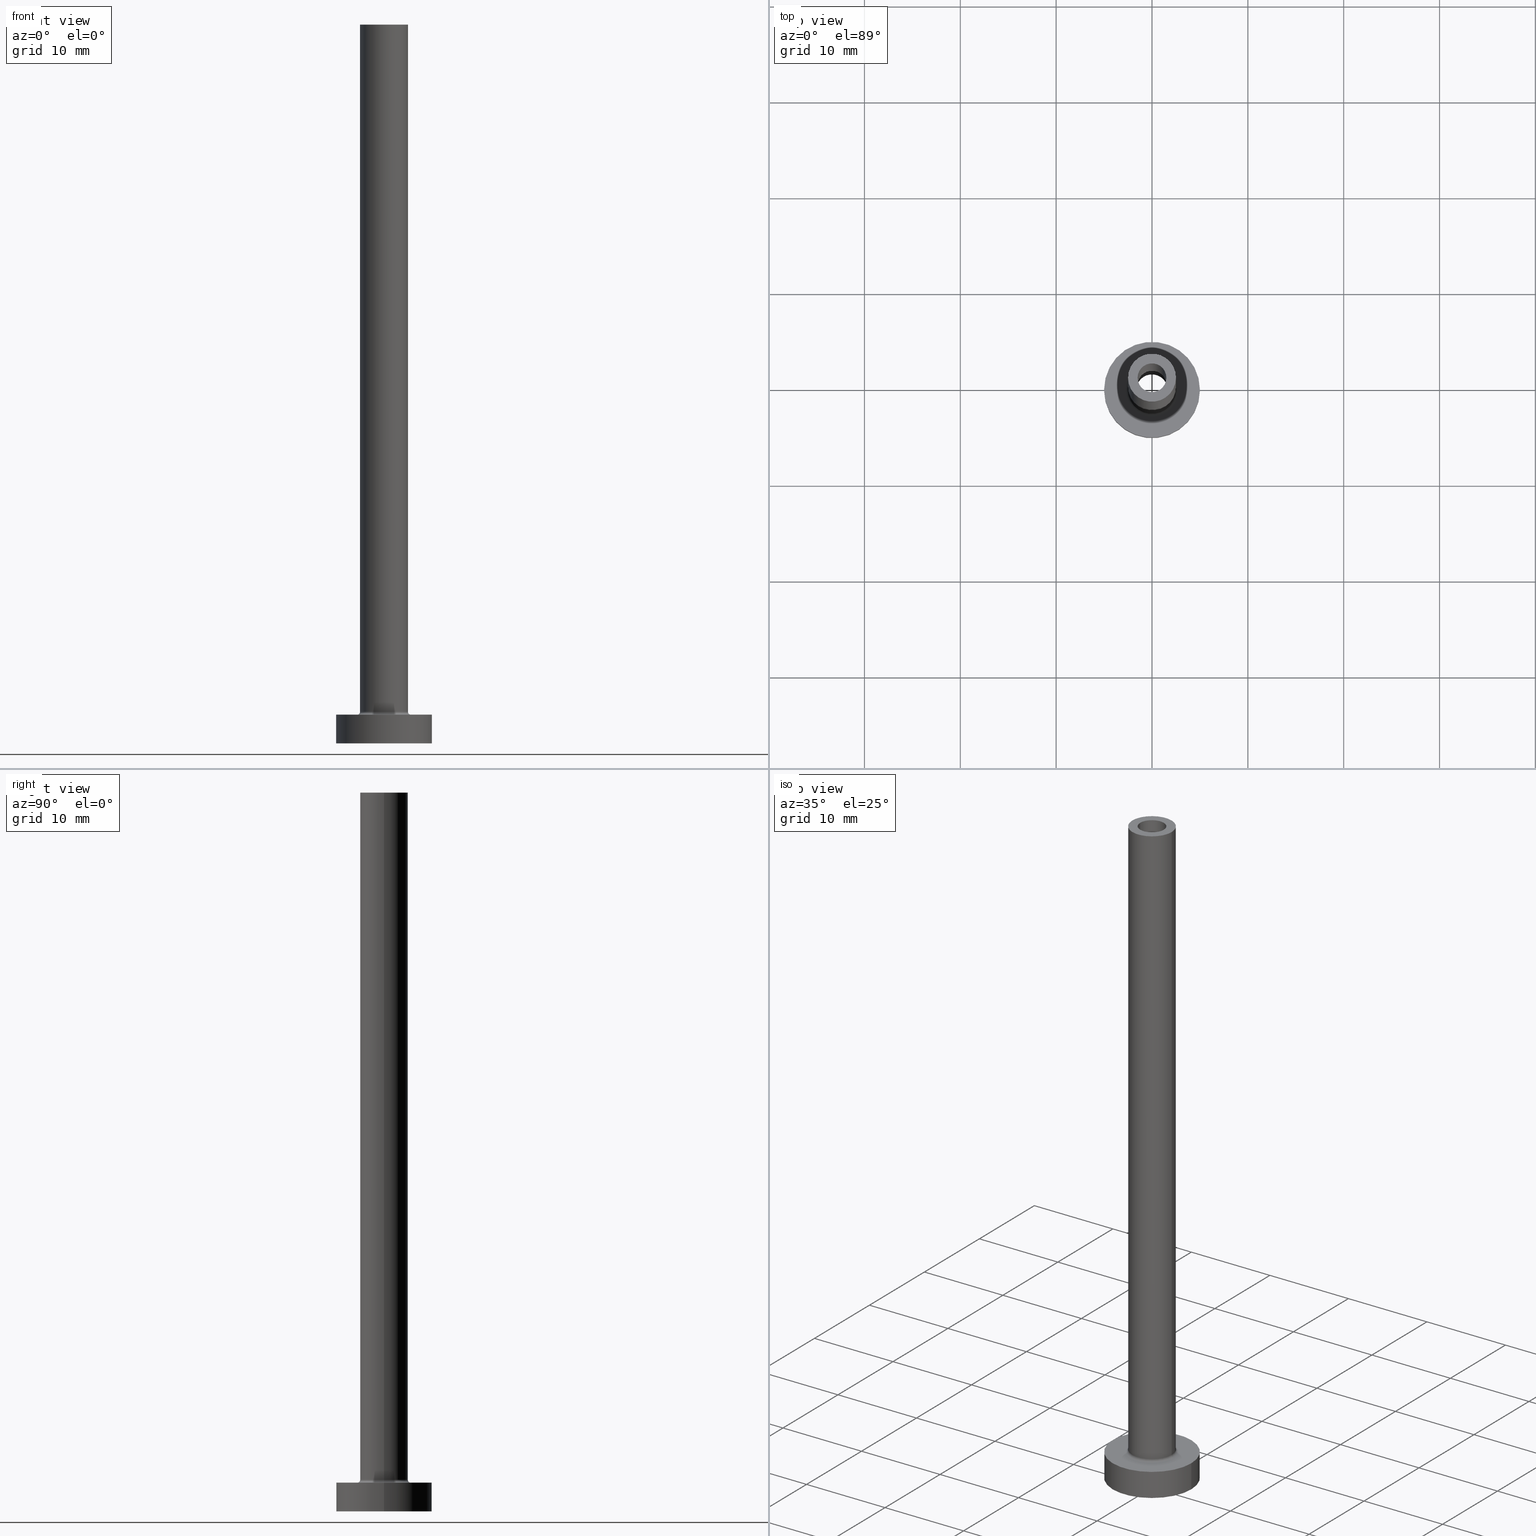
[diagram: canonical four-view strip — front | top / right | iso, engineering-drawing reading convention]
A machine part, canonical four-view strip (front | top / right | iso — engineering-drawing reading convention). The complete STEP part file that produces these views, byte-faithful:
ISO-10303-21;
HEADER;
FILE_DESCRIPTION (( 'STEP AP203' ),
    '1' );
FILE_NAME ('d244.STEP',
    '2023-02-13T12:48:20',
    ( '' ),
    ( '' ),
    'SwSTEP 2.0',
    'SolidWorks 2019',
    '' );
FILE_SCHEMA (( 'CONFIG_CONTROL_DESIGN' ));
ENDSEC;

DATA;
#1 = AXIS2_PLACEMENT_3D ( 'NONE', #138, #398, #359 ) ;
#2 = ORGANIZATION ( 'NEUR�EN�', 'NEUR�EN�', '' ) ;
#3 = DIRECTION ( 'NONE',  ( 1.000000000000000000, 0.000000000000000000, 0.000000000000000000 ) ) ;
#4 = CARTESIAN_POINT ( 'NONE',  ( 0.000000000000000000, 0.000000000000000000, 30.00000000000001421 ) ) ;
#5 = APPROVAL ( #351, 'NEUR�EN�' ) ;
#6 = ORIENTED_EDGE ( 'NONE', *, *, #372, .F. ) ;
#7 = DIRECTION ( 'NONE',  ( 0.000000000000000000, 0.000000000000000000, -1.000000000000000000 ) ) ;
#8 = ORIENTED_EDGE ( 'NONE', *, *, #247, .T. ) ;
#9 = ORIENTED_EDGE ( 'NONE', *, *, #108, .F. ) ;
#10 = CYLINDRICAL_SURFACE ( 'NONE', #397, 2.500000000000000000 ) ;
#11 = ORIENTED_EDGE ( 'NONE', *, *, #195, .F. ) ;
#12 = CC_DESIGN_PERSON_AND_ORGANIZATION_ASSIGNMENT ( #128, #159, ( #288 ) ) ;
#13 = LINE ( 'NONE', #258, #15 ) ;
#14 = VERTEX_POINT ( 'NONE', #30 ) ;
#15 = VECTOR ( 'NONE', #338, 1000.000000000000000 ) ;
#16 = CARTESIAN_POINT ( 'NONE',  ( 5.000000000000000000, 6.123233995736766282E-16, 3.000000000000000000 ) ) ;
#17 = ORIENTED_EDGE ( 'NONE', *, *, #101, .F. ) ;
#18 = CARTESIAN_POINT ( 'NONE',  ( 2.500000000000000000, 3.061616997868383141E-16, 75.00000000000001421 ) ) ;
#19 = EDGE_CURVE ( 'NONE', #353, #14, #395, .T. ) ;
#20 = VERTEX_POINT ( 'NONE', #389 ) ;
#21 = APPROVAL_ROLE ( '' ) ;
#22 = CARTESIAN_POINT ( 'NONE',  ( 0.000000000000000000, 0.000000000000000000, 3.299999999999997158 ) ) ;
#23 = FACE_OUTER_BOUND ( 'NONE', #47, .T. ) ;
#24 = VECTOR ( 'NONE', #277, 1000.000000000000000 ) ;
#25 = PRODUCT_DEFINITION ( 'NEZN�M�', '', #130, #405 ) ;
#26 = FACE_BOUND ( 'NONE', #116, .T. ) ;
#27 = APPLICATION_PROTOCOL_DEFINITION ( 'international standard', 'config_control_design', 1994, #301 ) ;
#28 = CARTESIAN_POINT ( 'NONE',  ( -2.799999999999999822, 3.429011037612588783E-16, 3.299999999999997158 ) ) ;
#29 = APPLICATION_CONTEXT ( 'configuration controlled 3d designs of mechanical parts and assemblies' ) ;
#30 = CARTESIAN_POINT ( 'NONE',  ( -5.000000000000000000, 0.000000000000000000, 3.000000000000000000 ) ) ;
#31 = AXIS2_PLACEMENT_3D ( 'NONE', #77, #216, #260 ) ;
#32 = CARTESIAN_POINT ( 'NONE',  ( -2.500000000000000000, 0.000000000000000000, 75.00000000000001421 ) ) ;
#33 = ADVANCED_FACE ( 'NONE', ( #26, #348 ), #169, .F. ) ;
#34 = DIRECTION ( 'NONE',  ( 1.000000000000000000, 0.000000000000000000, 0.000000000000000000 ) ) ;
#35 = LINE ( 'NONE', #211, #105 ) ;
#36 = AXIS2_PLACEMENT_3D ( 'NONE', #22, #270, #160 ) ;
#37 = APPROVAL ( #382, 'NEUR�EN�' ) ;
#38 = FACE_OUTER_BOUND ( 'NONE', #186, .T. ) ;
#39 = CARTESIAN_POINT ( 'NONE',  ( 0.000000000000000000, 0.000000000000000000, 75.00000000000001421 ) ) ;
#40 = ORIENTED_EDGE ( 'NONE', *, *, #366, .T. ) ;
#41 = AXIS2_PLACEMENT_3D ( 'NONE', #393, #104, #248 ) ;
#42 = CC_DESIGN_APPROVAL ( #319, ( #25 ) ) ;
#43 = ORIENTED_EDGE ( 'NONE', *, *, #233, .F. ) ;
#44 = CARTESIAN_POINT ( 'NONE',  ( 0.000000000000000000, 0.000000000000000000, 30.00000000000001421 ) ) ;
#45 = EDGE_LOOP ( 'NONE', ( #429, #76, #253, #143 ) ) ;
#46 = DIRECTION ( 'NONE',  ( -0.000000000000000000, -0.000000000000000000, -1.000000000000000000 ) ) ;
#47 = EDGE_LOOP ( 'NONE', ( #6, #328, #40, #304 ) ) ;
#48 = ADVANCED_FACE ( 'NONE', ( #203 ), #58, .F. ) ;
#49 = CIRCLE ( 'NONE', #227, 2.799999999999999822 ) ;
#50 = DIRECTION ( 'NONE',  ( -1.000000000000000000, 0.000000000000000000, 0.000000000000000000 ) ) ;
#51 = ORIENTED_EDGE ( 'NONE', *, *, #420, .T. ) ;
#52 = VERTEX_POINT ( 'NONE', #56 ) ;
#53 = APPROVAL_STATUS ( 'not_yet_approved' ) ;
#54 = CARTESIAN_POINT ( 'NONE',  ( 0.000000000000000000, 0.000000000000000000, 3.000000000000000000 ) ) ;
#55 = APPROVAL_DATE_TIME ( #166, #319 ) ;
#56 = CARTESIAN_POINT ( 'NONE',  ( -2.799999999999999822, 3.429011037612589276E-16, 2.999999999999998668 ) ) ;
#57 = DATE_AND_TIME ( #311, #346 ) ;
#58 = CYLINDRICAL_SURFACE ( 'NONE', #452, 1.500000000000000222 ) ;
#59 = PERSON_AND_ORGANIZATION ( #287, #2 ) ;
#60 = CIRCLE ( 'NONE', #148, 5.000000000000000000 ) ;
#61 = FACE_OUTER_BOUND ( 'NONE', #376, .T. ) ;
#62 = DIRECTION ( 'NONE',  ( 1.000000000000000000, 0.000000000000000000, 0.000000000000000000 ) ) ;
#63 = VECTOR ( 'NONE', #324, 1000.000000000000000 ) ;
#64 = DIRECTION ( 'NONE',  ( 0.000000000000000000, 0.000000000000000000, 1.000000000000000000 ) ) ;
#65 = EDGE_CURVE ( 'NONE', #14, #353, #60, .T. ) ;
#66 = FACE_OUTER_BOUND ( 'NONE', #357, .T. ) ;
#67 = AXIS2_PLACEMENT_3D ( 'NONE', #240, #391, #179 ) ;
#68 = LOCAL_TIME ( 13, 48, 20.00000000000000000, #94 ) ;
#69 = PLANE ( 'NONE',  #257 ) ;
#70 = LINE ( 'NONE', #142, #24 ) ;
#71 = CARTESIAN_POINT ( 'NONE',  ( 0.000000000000000000, 0.000000000000000000, 0.000000000000000000 ) ) ;
#72 = ADVANCED_FACE ( 'NONE', ( #61 ), #381, .F. ) ;
#73 = ORIENTED_EDGE ( 'NONE', *, *, #403, .F. ) ;
#74 = CIRCLE ( 'NONE', #438, 1.500000000000000222 ) ;
#75 =( NAMED_UNIT ( * ) SI_UNIT ( $, .STERADIAN. ) SOLID_ANGLE_UNIT ( ) );
#76 = ORIENTED_EDGE ( 'NONE', *, *, #131, .T. ) ;
#77 = CARTESIAN_POINT ( 'NONE',  ( 0.000000000000000000, 0.000000000000000000, 75.00000000000001421 ) ) ;
#78 = ORIENTED_EDGE ( 'NONE', *, *, #187, .T. ) ;
#79 = ADVANCED_FACE ( 'NONE', ( #23 ), #126, .T. ) ;
#80 = DIRECTION ( 'NONE',  ( -0.000000000000000000, -0.000000000000000000, -1.000000000000000000 ) ) ;
#81 = ORIENTED_EDGE ( 'NONE', *, *, #380, .T. ) ;
#82 = TOROIDAL_SURFACE ( 'NONE', #67, 2.799999999999999822, 0.2999999999999999889 ) ;
#83 = LOCAL_TIME ( 13, 48, 20.00000000000000000, #418 ) ;
#84 = ORIENTED_EDGE ( 'NONE', *, *, #96, .T. ) ;
#85 = APPROVAL_ROLE ( '' ) ;
#86 = DIRECTION ( 'NONE',  ( 0.000000000000000000, 0.000000000000000000, 1.000000000000000000 ) ) ;
#87 = PERSON_AND_ORGANIZATION_ROLE ( 'creator' ) ;
#88 = EDGE_CURVE ( 'NONE', #392, #20, #284, .T. ) ;
#89 = DIRECTION ( 'NONE',  ( 1.000000000000000000, 0.000000000000000000, -0.000000000000000000 ) ) ;
#90 = COORDINATED_UNIVERSAL_TIME_OFFSET ( 1, 0, .AHEAD. ) ;
#91 = CIRCLE ( 'NONE', #152, 2.799999999999999822 ) ;
#92 = DIRECTION ( 'NONE',  ( 0.000000000000000000, 0.000000000000000000, 1.000000000000000000 ) ) ;
#93 = AXIS2_PLACEMENT_3D ( 'NONE', #71, #335, #150 ) ;
#94 = COORDINATED_UNIVERSAL_TIME_OFFSET ( 1, 0, .AHEAD. ) ;
#95 = CARTESIAN_POINT ( 'NONE',  ( 0.000000000000000000, 0.000000000000000000, 3.000000000000000000 ) ) ;
#96 = EDGE_CURVE ( 'NONE', #20, #392, #238, .T. ) ;
#97 = DIRECTION ( 'NONE',  ( -0.000000000000000000, -0.000000000000000000, -1.000000000000000000 ) ) ;
#98 = CARTESIAN_POINT ( 'NONE',  ( 0.000000000000000000, 0.000000000000000000, 0.000000000000000000 ) ) ;
#99 = AXIS2_PLACEMENT_3D ( 'NONE', #44, #365, #156 ) ;
#100 = PLANE ( 'NONE',  #390 ) ;
#101 = EDGE_CURVE ( 'NONE', #244, #264, #430, .T. ) ;
#102 = DIRECTION ( 'NONE',  ( 0.000000000000000000, 0.000000000000000000, 1.000000000000000000 ) ) ;
#103 = AXIS2_PLACEMENT_3D ( 'NONE', #317, #86, #89 ) ;
#104 = DIRECTION ( 'NONE',  ( 0.000000000000000000, 0.000000000000000000, 1.000000000000000000 ) ) ;
#105 = VECTOR ( 'NONE', #399, 1000.000000000000000 ) ;
#106 = VECTOR ( 'NONE', #118, 1000.000000000000000 ) ;
#107 = DIRECTION ( 'NONE',  ( 1.000000000000000000, 0.000000000000000000, 0.000000000000000000 ) ) ;
#108 = EDGE_CURVE ( 'NONE', #221, #52, #158, .T. ) ;
#109 = CARTESIAN_POINT ( 'NONE',  ( 5.000000000000000000, 6.123233995736766282E-16, 3.000000000000000000 ) ) ;
#110 = ORIENTED_EDGE ( 'NONE', *, *, #269, .T. ) ;
#111 = EDGE_LOOP ( 'NONE', ( #11, #286 ) ) ;
#112 = FACE_OUTER_BOUND ( 'NONE', #374, .T. ) ;
#113 = CC_DESIGN_DATE_AND_TIME_ASSIGNMENT ( #414, #231, ( #412 ) ) ;
#114 = ORIENTED_EDGE ( 'NONE', *, *, #255, .T. ) ;
#115 = CARTESIAN_POINT ( 'NONE',  ( 2.500000000000000000, 3.061616997868383141E-16, 75.00000000000001421 ) ) ;
#116 = EDGE_LOOP ( 'NONE', ( #84, #196 ) ) ;
#117 = AXIS2_PLACEMENT_3D ( 'NONE', #449, #422, #237 ) ;
#118 = DIRECTION ( 'NONE',  ( 0.000000000000000000, 0.000000000000000000, -1.000000000000000000 ) ) ;
#119 = EDGE_LOOP ( 'NONE', ( #306, #296 ) ) ;
#120 = AXIS2_PLACEMENT_3D ( 'NONE', #246, #215, #181 ) ;
#121 = PERSON_AND_ORGANIZATION ( #287, #2 ) ;
#122 = CC_DESIGN_SECURITY_CLASSIFICATION ( #412, ( #130 ) ) ;
#123 = FACE_OUTER_BOUND ( 'NONE', #323, .T. ) ;
#124 = CC_DESIGN_DATE_AND_TIME_ASSIGNMENT ( #132, #316, ( #25 ) ) ;
#125 = PERSON_AND_ORGANIZATION_ROLE ( 'creator' ) ;
#126 = CYLINDRICAL_SURFACE ( 'NONE', #245, 2.500000000000000000 ) ;
#127 = DIRECTION ( 'NONE',  ( 1.224646799147353207E-16, 1.000000000000000000, -0.000000000000000000 ) ) ;
#128 = PERSON_AND_ORGANIZATION ( #287, #2 ) ;
#129 = DIRECTION ( 'NONE',  ( 0.000000000000000000, 0.000000000000000000, -1.000000000000000000 ) ) ;
#130 = PRODUCT_DEFINITION_FORMATION_WITH_SPECIFIED_SOURCE ( 'LIBOVOLN�', '', #288, .NOT_KNOWN. ) ;
#131 = EDGE_CURVE ( 'NONE', #155, #461, #74, .T. ) ;
#132 = DATE_AND_TIME ( #163, #310 ) ;
#133 = DIRECTION ( 'NONE',  ( 0.000000000000000000, 0.000000000000000000, 1.000000000000000000 ) ) ;
#134 = CARTESIAN_POINT ( 'NONE',  ( -1.650000000000000133, 0.000000000000000000, 0.000000000000000000 ) ) ;
#135 = FACE_OUTER_BOUND ( 'NONE', #111, .T. ) ;
#136 = EDGE_LOOP ( 'NONE', ( #73, #43 ) ) ;
#137 = CC_DESIGN_APPROVAL ( #37, ( #412 ) ) ;
#138 = CARTESIAN_POINT ( 'NONE',  ( 0.000000000000000000, 0.000000000000000000, 75.00000000000001421 ) ) ;
#139 = ORIENTED_EDGE ( 'NONE', *, *, #96, .F. ) ;
#140 = CYLINDRICAL_SURFACE ( 'NONE', #120, 1.650000000000000133 ) ;
#141 = ORIENTED_EDGE ( 'NONE', *, *, #358, .T. ) ;
#142 = CARTESIAN_POINT ( 'NONE',  ( 1.650000000000000133, 2.020667218593133001E-16, 34.66690475583122577 ) ) ;
#143 = ORIENTED_EDGE ( 'NONE', *, *, #88, .F. ) ;
#144 = DIRECTION ( 'NONE',  ( -0.000000000000000000, -0.000000000000000000, -1.000000000000000000 ) ) ;
#145 = ORIENTED_EDGE ( 'NONE', *, *, #420, .F. ) ;
#146 = CARTESIAN_POINT ( 'NONE',  ( 0.000000000000000000, 0.000000000000000000, 34.66690475583122577 ) ) ;
#147 = ORIENTED_EDGE ( 'NONE', *, *, #65, .F. ) ;
#148 = AXIS2_PLACEMENT_3D ( 'NONE', #165, #171, #318 ) ;
#149 = ADVANCED_FACE ( 'NONE', ( #276, #123 ), #454, .T. ) ;
#150 = DIRECTION ( 'NONE',  ( 1.000000000000000000, 0.000000000000000000, 0.000000000000000000 ) ) ;
#151 = ORIENTED_EDGE ( 'NONE', *, *, #101, .T. ) ;
#152 = AXIS2_PLACEMENT_3D ( 'NONE', #373, #46, #367 ) ;
#153 = CIRCLE ( 'NONE', #93, 1.650000000000000133 ) ;
#154 = CARTESIAN_POINT ( 'NONE',  ( -1.650000000000000133, 0.000000000000000000, 34.66690475583122577 ) ) ;
#155 = VERTEX_POINT ( 'NONE', #199 ) ;
#156 = DIRECTION ( 'NONE',  ( 1.000000000000000000, 0.000000000000000000, 0.000000000000000000 ) ) ;
#157 = ORIENTED_EDGE ( 'NONE', *, *, #233, .T. ) ;
#158 = CIRCLE ( 'NONE', #388, 0.2999999999999999334 ) ;
#159 = PERSON_AND_ORGANIZATION_ROLE ( 'design_owner' ) ;
#160 = DIRECTION ( 'NONE',  ( 1.000000000000000000, 0.000000000000000000, 0.000000000000000000 ) ) ;
#161 = ADVANCED_FACE ( 'NONE', ( #387 ), #401, .F. ) ;
#162 = AXIS2_PLACEMENT_3D ( 'NONE', #207, #177, #3 ) ;
#163 = CALENDAR_DATE ( 2023, 13, 2 ) ;
#164 = CARTESIAN_POINT ( 'NONE',  ( 0.000000000000000000, 0.000000000000000000, 30.00000000000001421 ) ) ;
#165 = CARTESIAN_POINT ( 'NONE',  ( 0.000000000000000000, 0.000000000000000000, 3.000000000000000000 ) ) ;
#166 = DATE_AND_TIME ( #170, #83 ) ;
#167 = AXIS2_PLACEMENT_3D ( 'NONE', #164, #230, #62 ) ;
#168 = EDGE_CURVE ( 'NONE', #52, #264, #49, .T. ) ;
#169 = PLANE ( 'NONE',  #103 ) ;
#170 = CALENDAR_DATE ( 2023, 13, 2 ) ;
#171 = DIRECTION ( 'NONE',  ( 0.000000000000000000, 0.000000000000000000, 1.000000000000000000 ) ) ;
#172 = LINE ( 'NONE', #282, #63 ) ;
#173 = FACE_OUTER_BOUND ( 'NONE', #427, .T. ) ;
#174 = VERTEX_POINT ( 'NONE', #267 ) ;
#175 = EDGE_CURVE ( 'NONE', #155, #392, #415, .T. ) ;
#176 = MANIFOLD_SOLID_BREP ( 'Odebrat vysunut�m4', #342 ) ;
#177 = DIRECTION ( 'NONE',  ( -0.000000000000000000, -0.000000000000000000, -1.000000000000000000 ) ) ;
#178 = APPROVAL_PERSON_ORGANIZATION ( #349, #5, #198 ) ;
#179 = DIRECTION ( 'NONE',  ( 1.000000000000000000, 0.000000000000000000, 0.000000000000000000 ) ) ;
#180 = ORIENTED_EDGE ( 'NONE', *, *, #450, .T. ) ;
#181 = DIRECTION ( 'NONE',  ( -1.000000000000000000, 0.000000000000000000, 0.000000000000000000 ) ) ;
#182 = EDGE_CURVE ( 'NONE', #461, #20, #35, .T. ) ;
#183 = EDGE_LOOP ( 'NONE', ( #400, #261, #114, #293 ) ) ;
#184 = ADVANCED_BREP_SHAPE_REPRESENTATION ( 'd244', ( #176, #433 ), #300 ) ;
#185 = CIRCLE ( 'NONE', #41, 2.500000000000000000 ) ;
#186 = EDGE_LOOP ( 'NONE', ( #226, #189, #251, #17 ) ) ;
#187 = EDGE_CURVE ( 'NONE', #442, #174, #377, .T. ) ;
#188 = DIRECTION ( 'NONE',  ( -1.000000000000000000, 0.000000000000000000, 0.000000000000000000 ) ) ;
#189 = ORIENTED_EDGE ( 'NONE', *, *, #108, .T. ) ;
#190 = LINE ( 'NONE', #18, #272 ) ;
#191 = VERTEX_POINT ( 'NONE', #134 ) ;
#192 = APPROVAL_PERSON_ORGANIZATION ( #229, #319, #21 ) ;
#193 = FACE_OUTER_BOUND ( 'NONE', #437, .T. ) ;
#194 = ORIENTED_EDGE ( 'NONE', *, *, #209, .T. ) ;
#195 = EDGE_CURVE ( 'NONE', #298, #404, #447, .T. ) ;
#196 = ORIENTED_EDGE ( 'NONE', *, *, #88, .T. ) ;
#197 = AXIS2_PLACEMENT_3D ( 'NONE', #95, #274, #417 ) ;
#198 = APPROVAL_ROLE ( '' ) ;
#199 = CARTESIAN_POINT ( 'NONE',  ( 1.500000000000000222, 1.836970198721029934E-16, 75.00000000000001421 ) ) ;
#200 = PERSON_AND_ORGANIZATION ( #287, #2 ) ;
#201 = CARTESIAN_POINT ( 'NONE',  ( 0.000000000000000000, 0.000000000000000000, 75.00000000000001421 ) ) ;
#202 = EDGE_CURVE ( 'NONE', #174, #440, #70, .T. ) ;
#203 = FACE_OUTER_BOUND ( 'NONE', #45, .T. ) ;
#204 = PERSON_AND_ORGANIZATION ( #287, #2 ) ;
#205 = CIRCLE ( 'NONE', #162, 1.650000000000000133 ) ;
#206 = CARTESIAN_POINT ( 'NONE',  ( 0.000000000000000000, 0.000000000000000000, 3.000000000000000000 ) ) ;
#207 = CARTESIAN_POINT ( 'NONE',  ( 0.000000000000000000, 0.000000000000000000, 0.000000000000000000 ) ) ;
#208 = PRODUCT_DEFINITION_SHAPE ( 'NONE', 'NONE',  #25 ) ;
#209 = EDGE_CURVE ( 'NONE', #244, #221, #354, .T. ) ;
#210 = AXIS2_PLACEMENT_3D ( 'NONE', #457, #129, #423 ) ;
#211 = CARTESIAN_POINT ( 'NONE',  ( -1.500000000000000222, 0.000000000000000000, 75.00000000000001421 ) ) ;
#212 = FACE_OUTER_BOUND ( 'NONE', #183, .T. ) ;
#213 = AXIS2_PLACEMENT_3D ( 'NONE', #434, #322, #250 ) ;
#214 = PRODUCT_RELATED_PRODUCT_CATEGORY ( 'detail', '', ( #288 ) ) ;
#215 = DIRECTION ( 'NONE',  ( 0.000000000000000000, 0.000000000000000000, -1.000000000000000000 ) ) ;
#216 = DIRECTION ( 'NONE',  ( 0.000000000000000000, 0.000000000000000000, 1.000000000000000000 ) ) ;
#217 = FACE_OUTER_BOUND ( 'NONE', #341, .T. ) ;
#218 = ORIENTED_EDGE ( 'NONE', *, *, #65, .T. ) ;
#219 = AXIS2_PLACEMENT_3D ( 'NONE', #356, #458, #426 ) ;
#220 = CYLINDRICAL_SURFACE ( 'NONE', #278, 5.000000000000000000 ) ;
#221 = VERTEX_POINT ( 'NONE', #424 ) ;
#222 = ADVANCED_FACE ( 'NONE', ( #38 ), #82, .F. ) ;
#223 = CYLINDRICAL_SURFACE ( 'NONE', #299, 5.000000000000000000 ) ;
#224 = ORIENTED_EDGE ( 'NONE', *, *, #283, .T. ) ;
#225 = CARTESIAN_POINT ( 'NONE',  ( 0.000000000000000000, 0.000000000000000000, 3.000000000000000000 ) ) ;
#226 = ORIENTED_EDGE ( 'NONE', *, *, #313, .F. ) ;
#227 = AXIS2_PLACEMENT_3D ( 'NONE', #206, #308, #446 ) ;
#228 = EDGE_LOOP ( 'NONE', ( #9, #242, #151, #325 ) ) ;
#229 = PERSON_AND_ORGANIZATION ( #287, #2 ) ;
#230 = DIRECTION ( 'NONE',  ( 0.000000000000000000, 0.000000000000000000, 1.000000000000000000 ) ) ;
#231 = DATE_TIME_ROLE ( 'classification_date' ) ;
#232 = DIRECTION ( 'NONE',  ( 0.000000000000000000, 0.000000000000000000, -1.000000000000000000 ) ) ;
#233 = EDGE_CURVE ( 'NONE', #440, #191, #205, .T. ) ;
#234 = CIRCLE ( 'NONE', #327, 5.000000000000000000 ) ;
#235 = CARTESIAN_POINT ( 'NONE',  ( 0.000000000000000000, 0.000000000000000000, 30.00000000000001421 ) ) ;
#236 = DIRECTION ( 'NONE',  ( 1.000000000000000000, 0.000000000000000000, 0.000000000000000000 ) ) ;
#237 = DIRECTION ( 'NONE',  ( 0.000000000000000000, 0.000000000000000000, -1.000000000000000000 ) ) ;
#238 = CIRCLE ( 'NONE', #167, 1.500000000000000222 ) ;
#239 = CARTESIAN_POINT ( 'NONE',  ( 0.000000000000000000, 0.000000000000000000, 75.00000000000001421 ) ) ;
#240 = CARTESIAN_POINT ( 'NONE',  ( 0.000000000000000000, 0.000000000000000000, 3.299999999999997158 ) ) ;
#241 = APPROVAL_PERSON_ORGANIZATION ( #204, #37, #85 ) ;
#242 = ORIENTED_EDGE ( 'NONE', *, *, #209, .F. ) ;
#243 = DIRECTION ( 'NONE',  ( 1.000000000000000000, 0.000000000000000000, -0.000000000000000000 ) ) ;
#244 = VERTEX_POINT ( 'NONE', #361 ) ;
#245 = AXIS2_PLACEMENT_3D ( 'NONE', #201, #97, #451 ) ;
#246 = CARTESIAN_POINT ( 'NONE',  ( 0.000000000000000000, 0.000000000000000000, 34.66690475583122577 ) ) ;
#247 = EDGE_CURVE ( 'NONE', #444, #256, #265, .T. ) ;
#248 = DIRECTION ( 'NONE',  ( 1.000000000000000000, 0.000000000000000000, 0.000000000000000000 ) ) ;
#249 = VECTOR ( 'NONE', #7, 1000.000000000000000 ) ;
#250 = DIRECTION ( 'NONE',  ( 1.000000000000000000, 0.000000000000000000, 0.000000000000000000 ) ) ;
#251 = ORIENTED_EDGE ( 'NONE', *, *, #358, .F. ) ;
#252 = CARTESIAN_POINT ( 'NONE',  ( 0.000000000000000000, 0.000000000000000000, 75.00000000000001421 ) ) ;
#253 = ORIENTED_EDGE ( 'NONE', *, *, #182, .T. ) ;
#254 = UNCERTAINTY_MEASURE_WITH_UNIT (LENGTH_MEASURE( 1.000000000000000082E-05 ), #408, 'distance_accuracy_value', 'NONE');
#255 = EDGE_CURVE ( 'NONE', #404, #298, #234, .T. ) ;
#256 = VERTEX_POINT ( 'NONE', #32 ) ;
#257 = AXIS2_PLACEMENT_3D ( 'NONE', #320, #64, #396 ) ;
#258 = CARTESIAN_POINT ( 'NONE',  ( -2.500000000000000000, 0.000000000000000000, 75.00000000000001421 ) ) ;
#259 = ORIENTED_EDGE ( 'NONE', *, *, #202, .F. ) ;
#260 = DIRECTION ( 'NONE',  ( 1.000000000000000000, 0.000000000000000000, 0.000000000000000000 ) ) ;
#261 = ORIENTED_EDGE ( 'NONE', *, *, #413, .T. ) ;
#262 = ADVANCED_FACE ( 'NONE', ( #173 ), #140, .F. ) ;
#263 = CARTESIAN_POINT ( 'NONE',  ( 1.650000000000000133, 2.020667218593133001E-16, 0.000000000000000000 ) ) ;
#264 = VERTEX_POINT ( 'NONE', #321 ) ;
#265 = CIRCLE ( 'NONE', #309, 2.500000000000000000 ) ;
#266 = PERSON_AND_ORGANIZATION_ROLE ( 'classification_officer' ) ;
#267 = CARTESIAN_POINT ( 'NONE',  ( 1.650000000000000133, 2.020667218593133001E-16, 30.00000000000001421 ) ) ;
#268 = CARTESIAN_POINT ( 'NONE',  ( 0.000000000000000000, 0.000000000000000000, 0.000000000000000000 ) ) ;
#269 = EDGE_CURVE ( 'NONE', #461, #155, #279, .T. ) ;
#270 = DIRECTION ( 'NONE',  ( 0.000000000000000000, 0.000000000000000000, 1.000000000000000000 ) ) ;
#271 = CARTESIAN_POINT ( 'NONE',  ( 0.000000000000000000, 0.000000000000000000, 75.00000000000001421 ) ) ;
#272 = VECTOR ( 'NONE', #305, 1000.000000000000000 ) ;
#273 = COORDINATED_UNIVERSAL_TIME_OFFSET ( 1, 0, .AHEAD. ) ;
#274 = DIRECTION ( 'NONE',  ( 0.000000000000000000, 0.000000000000000000, 1.000000000000000000 ) ) ;
#275 = SHAPE_DEFINITION_REPRESENTATION ( #208, #184 ) ;
#276 = FACE_BOUND ( 'NONE', #281, .T. ) ;
#277 = DIRECTION ( 'NONE',  ( 0.000000000000000000, 0.000000000000000000, -1.000000000000000000 ) ) ;
#278 = AXIS2_PLACEMENT_3D ( 'NONE', #225, #80, #370 ) ;
#279 = CIRCLE ( 'NONE', #1, 1.500000000000000222 ) ;
#280 = FACE_BOUND ( 'NONE', #136, .T. ) ;
#281 = EDGE_LOOP ( 'NONE', ( #141, #407 ) ) ;
#282 = CARTESIAN_POINT ( 'NONE',  ( -5.000000000000000000, 0.000000000000000000, 3.000000000000000000 ) ) ;
#283 = EDGE_CURVE ( 'NONE', #14, #298, #172, .T. ) ;
#284 = CIRCLE ( 'NONE', #332, 1.500000000000000222 ) ;
#285 = DIRECTION ( 'NONE',  ( 0.000000000000000000, 0.000000000000000000, 1.000000000000000000 ) ) ;
#286 = ORIENTED_EDGE ( 'NONE', *, *, #255, .F. ) ;
#287 = PERSON ( 'NEUR�EN�', 'NEUR�EN�', 'NEUR�EN�', ('NEUR�EN�'), ('NEUR�EN�'), ('NEUR�EN�') ) ;
#288 = PRODUCT ( 'd244', 'd244', '', ( #453 ) ) ;
#289 = FACE_BOUND ( 'NONE', #371, .T. ) ;
#290 = AXIS2_PLACEMENT_3D ( 'NONE', #4, #431, #107 ) ;
#291 = LOCAL_TIME ( 13, 48, 20.00000000000000000, #90 ) ;
#292 = CYLINDRICAL_SURFACE ( 'NONE', #360, 1.650000000000000133 ) ;
#293 = ORIENTED_EDGE ( 'NONE', *, *, #283, .F. ) ;
#294 = CC_DESIGN_PERSON_AND_ORGANIZATION_ASSIGNMENT ( #314, #448, ( #130 ) ) ;
#295 = LINE ( 'NONE', #16, #369 ) ;
#296 = ORIENTED_EDGE ( 'NONE', *, *, #380, .F. ) ;
#297 = CARTESIAN_POINT ( 'NONE',  ( 5.000000000000000000, 6.123233995736766282E-16, 0.000000000000000000 ) ) ;
#298 = VERTEX_POINT ( 'NONE', #460 ) ;
#299 = AXIS2_PLACEMENT_3D ( 'NONE', #439, #375, #50 ) ;
#300 =( GEOMETRIC_REPRESENTATION_CONTEXT ( 3 ) GLOBAL_UNCERTAINTY_ASSIGNED_CONTEXT ( ( #254 ) ) GLOBAL_UNIT_ASSIGNED_CONTEXT ( ( #408, #326, #75 ) ) REPRESENTATION_CONTEXT ( 'NONE', 'WORKASPACE' ) );
#301 = APPLICATION_CONTEXT ( 'configuration controlled 3d designs of mechanical parts and assemblies' ) ;
#302 = CARTESIAN_POINT ( 'NONE',  ( -1.650000000000000133, 0.000000000000000000, 30.00000000000001421 ) ) ;
#303 = ADVANCED_FACE ( 'NONE', ( #280, #135 ), #100, .F. ) ;
#304 = ORIENTED_EDGE ( 'NONE', *, *, #313, .T. ) ;
#305 = DIRECTION ( 'NONE',  ( -0.000000000000000000, -0.000000000000000000, -1.000000000000000000 ) ) ;
#306 = ORIENTED_EDGE ( 'NONE', *, *, #187, .F. ) ;
#307 = COORDINATED_UNIVERSAL_TIME_OFFSET ( 1, 0, .AHEAD. ) ;
#308 = DIRECTION ( 'NONE',  ( -0.000000000000000000, -0.000000000000000000, -1.000000000000000000 ) ) ;
#309 = AXIS2_PLACEMENT_3D ( 'NONE', #39, #102, #363 ) ;
#310 = LOCAL_TIME ( 13, 48, 20.00000000000000000, #307 ) ;
#311 = CALENDAR_DATE ( 2023, 13, 2 ) ;
#312 = DIRECTION ( 'NONE',  ( -1.000000000000000000, 0.000000000000000000, 0.000000000000000000 ) ) ;
#313 = EDGE_CURVE ( 'NONE', #221, #244, #185, .T. ) ;
#314 = PERSON_AND_ORGANIZATION ( #287, #2 ) ;
#315 = DIRECTION ( 'NONE',  ( 1.000000000000000000, 0.000000000000000000, 0.000000000000000000 ) ) ;
#316 = DATE_TIME_ROLE ( 'creation_date' ) ;
#317 = CARTESIAN_POINT ( 'NONE',  ( 0.000000000000000000, 0.000000000000000000, 30.00000000000001421 ) ) ;
#318 = DIRECTION ( 'NONE',  ( 1.000000000000000000, 0.000000000000000000, 0.000000000000000000 ) ) ;
#319 = APPROVAL ( #53, 'NEUR�EN�' ) ;
#320 = CARTESIAN_POINT ( 'NONE',  ( 0.000000000000000000, 0.000000000000000000, 75.00000000000001421 ) ) ;
#321 = CARTESIAN_POINT ( 'NONE',  ( 2.799999999999999822, 0.000000000000000000, 2.999999999999998668 ) ) ;
#322 = DIRECTION ( 'NONE',  ( 0.000000000000000000, 0.000000000000000000, 1.000000000000000000 ) ) ;
#323 = EDGE_LOOP ( 'NONE', ( #218, #362 ) ) ;
#324 = DIRECTION ( 'NONE',  ( -0.000000000000000000, -0.000000000000000000, -1.000000000000000000 ) ) ;
#325 = ORIENTED_EDGE ( 'NONE', *, *, #168, .F. ) ;
#326 =( NAMED_UNIT ( * ) PLANE_ANGLE_UNIT ( ) SI_UNIT ( $, .RADIAN. ) );
#327 = AXIS2_PLACEMENT_3D ( 'NONE', #98, #355, #34 ) ;
#328 = ORIENTED_EDGE ( 'NONE', *, *, #450, .F. ) ;
#329 = ADVANCED_FACE ( 'NONE', ( #289, #66 ), #69, .T. ) ;
#330 = ORIENTED_EDGE ( 'NONE', *, *, #175, .T. ) ;
#331 = DIRECTION ( 'NONE',  ( 0.000000000000000000, 0.000000000000000000, -1.000000000000000000 ) ) ;
#332 = AXIS2_PLACEMENT_3D ( 'NONE', #235, #133, #315 ) ;
#333 = ORIENTED_EDGE ( 'NONE', *, *, #195, .T. ) ;
#334 = ADVANCED_FACE ( 'NONE', ( #212 ), #220, .T. ) ;
#335 = DIRECTION ( 'NONE',  ( -0.000000000000000000, -0.000000000000000000, -1.000000000000000000 ) ) ;
#336 = ORIENTED_EDGE ( 'NONE', *, *, #182, .F. ) ;
#337 = CIRCLE ( 'NONE', #99, 1.650000000000000133 ) ;
#338 = DIRECTION ( 'NONE',  ( -0.000000000000000000, -0.000000000000000000, -1.000000000000000000 ) ) ;
#339 = ORIENTED_EDGE ( 'NONE', *, *, #269, .F. ) ;
#340 = CALENDAR_DATE ( 2023, 13, 2 ) ;
#341 = EDGE_LOOP ( 'NONE', ( #364, #147, #224, #333 ) ) ;
#342 = CLOSED_SHELL ( 'NONE', ( #72, #262, #222, #432, #334, #345, #149, #303, #79, #329, #161, #352, #33, #48 ) ) ;
#343 = APPROVAL_DATE_TIME ( #57, #37 ) ;
#344 = CARTESIAN_POINT ( 'NONE',  ( 1.500000000000000222, 1.836970198721029934E-16, 75.00000000000001421 ) ) ;
#345 = ADVANCED_FACE ( 'NONE', ( #217 ), #223, .T. ) ;
#346 = LOCAL_TIME ( 13, 48, 20.00000000000000000, #273 ) ;
#347 = DATE_AND_TIME ( #340, #291 ) ;
#348 = FACE_OUTER_BOUND ( 'NONE', #119, .T. ) ;
#349 = PERSON_AND_ORGANIZATION ( #287, #2 ) ;
#350 = DIRECTION ( 'NONE',  ( -1.000000000000000000, 1.224646799147353207E-16, 0.000000000000000000 ) ) ;
#351 = APPROVAL_STATUS ( 'not_yet_approved' ) ;
#352 = ADVANCED_FACE ( 'NONE', ( #193 ), #292, .F. ) ;
#353 = VERTEX_POINT ( 'NONE', #109 ) ;
#354 = CIRCLE ( 'NONE', #219, 2.500000000000000000 ) ;
#355 = DIRECTION ( 'NONE',  ( 0.000000000000000000, 0.000000000000000000, 1.000000000000000000 ) ) ;
#356 = CARTESIAN_POINT ( 'NONE',  ( 0.000000000000000000, 0.000000000000000000, 3.299999999999997158 ) ) ;
#357 = EDGE_LOOP ( 'NONE', ( #180, #8 ) ) ;
#358 = EDGE_CURVE ( 'NONE', #264, #52, #91, .T. ) ;
#359 = DIRECTION ( 'NONE',  ( 1.000000000000000000, 0.000000000000000000, 0.000000000000000000 ) ) ;
#360 = AXIS2_PLACEMENT_3D ( 'NONE', #146, #331, #188 ) ;
#361 = CARTESIAN_POINT ( 'NONE',  ( 2.500000000000000000, 3.061616997868383141E-16, 3.299999999999997158 ) ) ;
#362 = ORIENTED_EDGE ( 'NONE', *, *, #19, .T. ) ;
#363 = DIRECTION ( 'NONE',  ( 1.000000000000000000, 0.000000000000000000, 0.000000000000000000 ) ) ;
#364 = ORIENTED_EDGE ( 'NONE', *, *, #413, .F. ) ;
#365 = DIRECTION ( 'NONE',  ( 0.000000000000000000, 0.000000000000000000, 1.000000000000000000 ) ) ;
#366 = EDGE_CURVE ( 'NONE', #256, #221, #13, .T. ) ;
#367 = DIRECTION ( 'NONE',  ( 1.000000000000000000, 0.000000000000000000, 0.000000000000000000 ) ) ;
#368 = ORIENTED_EDGE ( 'NONE', *, *, #202, .T. ) ;
#369 = VECTOR ( 'NONE', #144, 1000.000000000000000 ) ;
#370 = DIRECTION ( 'NONE',  ( -1.000000000000000000, 0.000000000000000000, 0.000000000000000000 ) ) ;
#371 = EDGE_LOOP ( 'NONE', ( #339, #436 ) ) ;
#372 = EDGE_CURVE ( 'NONE', #444, #244, #190, .T. ) ;
#373 = CARTESIAN_POINT ( 'NONE',  ( 0.000000000000000000, 0.000000000000000000, 3.000000000000000000 ) ) ;
#374 = EDGE_LOOP ( 'NONE', ( #379, #409, #194, #425 ) ) ;
#375 = DIRECTION ( 'NONE',  ( -0.000000000000000000, -0.000000000000000000, -1.000000000000000000 ) ) ;
#376 = EDGE_LOOP ( 'NONE', ( #110, #330, #139, #336 ) ) ;
#377 = CIRCLE ( 'NONE', #290, 1.650000000000000133 ) ;
#378 = CIRCLE ( 'NONE', #31, 2.500000000000000000 ) ;
#379 = ORIENTED_EDGE ( 'NONE', *, *, #247, .F. ) ;
#380 = EDGE_CURVE ( 'NONE', #174, #442, #337, .T. ) ;
#381 = CYLINDRICAL_SURFACE ( 'NONE', #210, 1.500000000000000222 ) ;
#382 = APPROVAL_STATUS ( 'not_yet_approved' ) ;
#383 = DIRECTION ( 'NONE',  ( 0.000000000000000000, 0.000000000000000000, 1.000000000000000000 ) ) ;
#384 = APPLICATION_PROTOCOL_DEFINITION ( 'international standard', 'config_control_design', 1994, #29 ) ;
#385 = DIRECTION ( 'NONE',  ( 1.000000000000000000, 0.000000000000000000, -0.000000000000000000 ) ) ;
#386 = CC_DESIGN_PERSON_AND_ORGANIZATION_ASSIGNMENT ( #121, #125, ( #130 ) ) ;
#387 = FACE_OUTER_BOUND ( 'NONE', #228, .T. ) ;
#388 = AXIS2_PLACEMENT_3D ( 'NONE', #28, #127, #350 ) ;
#389 = CARTESIAN_POINT ( 'NONE',  ( -1.500000000000000222, 0.000000000000000000, 30.00000000000001421 ) ) ;
#390 = AXIS2_PLACEMENT_3D ( 'NONE', #428, #285, #243 ) ;
#391 = DIRECTION ( 'NONE',  ( 0.000000000000000000, 0.000000000000000000, 1.000000000000000000 ) ) ;
#392 = VERTEX_POINT ( 'NONE', #441 ) ;
#393 = CARTESIAN_POINT ( 'NONE',  ( 0.000000000000000000, 0.000000000000000000, 3.299999999999997158 ) ) ;
#394 = CC_DESIGN_PERSON_AND_ORGANIZATION_ASSIGNMENT ( #200, #266, ( #412 ) ) ;
#395 = CIRCLE ( 'NONE', #197, 5.000000000000000000 ) ;
#396 = DIRECTION ( 'NONE',  ( 1.000000000000000000, 0.000000000000000000, -0.000000000000000000 ) ) ;
#397 = AXIS2_PLACEMENT_3D ( 'NONE', #252, #410, #406 ) ;
#398 = DIRECTION ( 'NONE',  ( 0.000000000000000000, 0.000000000000000000, 1.000000000000000000 ) ) ;
#399 = DIRECTION ( 'NONE',  ( 0.000000000000000000, 0.000000000000000000, -1.000000000000000000 ) ) ;
#400 = ORIENTED_EDGE ( 'NONE', *, *, #19, .F. ) ;
#401 = TOROIDAL_SURFACE ( 'NONE', #36, 2.799999999999999822, 0.2999999999999999889 ) ;
#402 = CC_DESIGN_APPROVAL ( #5, ( #130 ) ) ;
#403 = EDGE_CURVE ( 'NONE', #191, #440, #153, .T. ) ;
#404 = VERTEX_POINT ( 'NONE', #297 ) ;
#405 = DESIGN_CONTEXT ( 'detailed design', #301, 'design' ) ;
#406 = DIRECTION ( 'NONE',  ( -1.000000000000000000, 0.000000000000000000, 0.000000000000000000 ) ) ;
#407 = ORIENTED_EDGE ( 'NONE', *, *, #168, .T. ) ;
#408 =( LENGTH_UNIT ( ) NAMED_UNIT ( * ) SI_UNIT ( .MILLI., .METRE. ) );
#409 = ORIENTED_EDGE ( 'NONE', *, *, #372, .T. ) ;
#410 = DIRECTION ( 'NONE',  ( -0.000000000000000000, -0.000000000000000000, -1.000000000000000000 ) ) ;
#411 = ORIENTED_EDGE ( 'NONE', *, *, #403, .T. ) ;
#412 = SECURITY_CLASSIFICATION ( '', '', #456 ) ;
#413 = EDGE_CURVE ( 'NONE', #353, #404, #295, .T. ) ;
#414 = DATE_AND_TIME ( #421, #68 ) ;
#415 = LINE ( 'NONE', #344, #249 ) ;
#416 = APPROVAL_DATE_TIME ( #347, #5 ) ;
#417 = DIRECTION ( 'NONE',  ( 1.000000000000000000, 0.000000000000000000, 0.000000000000000000 ) ) ;
#418 = COORDINATED_UNIVERSAL_TIME_OFFSET ( 1, 0, .AHEAD. ) ;
#419 = DIRECTION ( 'NONE',  ( 1.000000000000000000, 0.000000000000000000, 0.000000000000000000 ) ) ;
#420 = EDGE_CURVE ( 'NONE', #442, #191, #443, .T. ) ;
#421 = CALENDAR_DATE ( 2023, 13, 2 ) ;
#422 = DIRECTION ( 'NONE',  ( 0.000000000000000000, -1.000000000000000000, 0.000000000000000000 ) ) ;
#423 = DIRECTION ( 'NONE',  ( -1.000000000000000000, 0.000000000000000000, 0.000000000000000000 ) ) ;
#424 = CARTESIAN_POINT ( 'NONE',  ( -2.500000000000000000, 0.000000000000000000, 3.299999999999997158 ) ) ;
#425 = ORIENTED_EDGE ( 'NONE', *, *, #366, .F. ) ;
#426 = DIRECTION ( 'NONE',  ( 1.000000000000000000, 0.000000000000000000, 0.000000000000000000 ) ) ;
#427 = EDGE_LOOP ( 'NONE', ( #78, #368, #157, #145 ) ) ;
#428 = CARTESIAN_POINT ( 'NONE',  ( 0.000000000000000000, 0.000000000000000000, 0.000000000000000000 ) ) ;
#429 = ORIENTED_EDGE ( 'NONE', *, *, #175, .F. ) ;
#430 = CIRCLE ( 'NONE', #117, 0.2999999999999999334 ) ;
#431 = DIRECTION ( 'NONE',  ( 0.000000000000000000, 0.000000000000000000, 1.000000000000000000 ) ) ;
#432 = ADVANCED_FACE ( 'NONE', ( #112 ), #10, .T. ) ;
#433 = AXIS2_PLACEMENT_3D ( 'NONE', #268, #445, #236 ) ;
#434 = CARTESIAN_POINT ( 'NONE',  ( 0.000000000000000000, 0.000000000000000000, 0.000000000000000000 ) ) ;
#435 = CARTESIAN_POINT ( 'NONE',  ( -1.500000000000000222, 0.000000000000000000, 75.00000000000001421 ) ) ;
#436 = ORIENTED_EDGE ( 'NONE', *, *, #131, .F. ) ;
#437 = EDGE_LOOP ( 'NONE', ( #259, #81, #51, #411 ) ) ;
#438 = AXIS2_PLACEMENT_3D ( 'NONE', #271, #383, #419 ) ;
#439 = CARTESIAN_POINT ( 'NONE',  ( 0.000000000000000000, 0.000000000000000000, 3.000000000000000000 ) ) ;
#440 = VERTEX_POINT ( 'NONE', #263 ) ;
#441 = CARTESIAN_POINT ( 'NONE',  ( 1.500000000000000222, 1.836970198721029934E-16, 30.00000000000001421 ) ) ;
#442 = VERTEX_POINT ( 'NONE', #302 ) ;
#443 = LINE ( 'NONE', #154, #106 ) ;
#444 = VERTEX_POINT ( 'NONE', #115 ) ;
#445 = DIRECTION ( 'NONE',  ( 0.000000000000000000, 0.000000000000000000, 1.000000000000000000 ) ) ;
#446 = DIRECTION ( 'NONE',  ( 1.000000000000000000, 0.000000000000000000, 0.000000000000000000 ) ) ;
#447 = CIRCLE ( 'NONE', #213, 5.000000000000000000 ) ;
#448 = PERSON_AND_ORGANIZATION_ROLE ( 'design_supplier' ) ;
#449 = CARTESIAN_POINT ( 'NONE',  ( 2.799999999999999822, 0.000000000000000000, 3.299999999999997158 ) ) ;
#450 = EDGE_CURVE ( 'NONE', #256, #444, #378, .T. ) ;
#451 = DIRECTION ( 'NONE',  ( -1.000000000000000000, 0.000000000000000000, 0.000000000000000000 ) ) ;
#452 = AXIS2_PLACEMENT_3D ( 'NONE', #239, #232, #312 ) ;
#453 = MECHANICAL_CONTEXT ( 'NONE', #29, 'mechanical' ) ;
#454 = PLANE ( 'NONE',  #455 ) ;
#455 = AXIS2_PLACEMENT_3D ( 'NONE', #54, #92, #385 ) ;
#456 = SECURITY_CLASSIFICATION_LEVEL ( 'unclassified' ) ;
#457 = CARTESIAN_POINT ( 'NONE',  ( 0.000000000000000000, 0.000000000000000000, 75.00000000000001421 ) ) ;
#458 = DIRECTION ( 'NONE',  ( 0.000000000000000000, 0.000000000000000000, 1.000000000000000000 ) ) ;
#459 = CC_DESIGN_PERSON_AND_ORGANIZATION_ASSIGNMENT ( #59, #87, ( #25 ) ) ;
#460 = CARTESIAN_POINT ( 'NONE',  ( -5.000000000000000000, 0.000000000000000000, 0.000000000000000000 ) ) ;
#461 = VERTEX_POINT ( 'NONE', #435 ) ;
ENDSEC;
END-ISO-10303-21;
